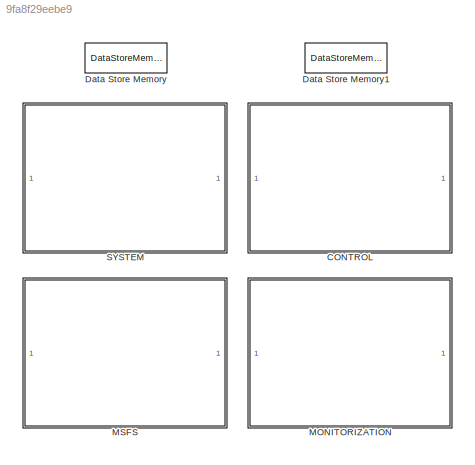
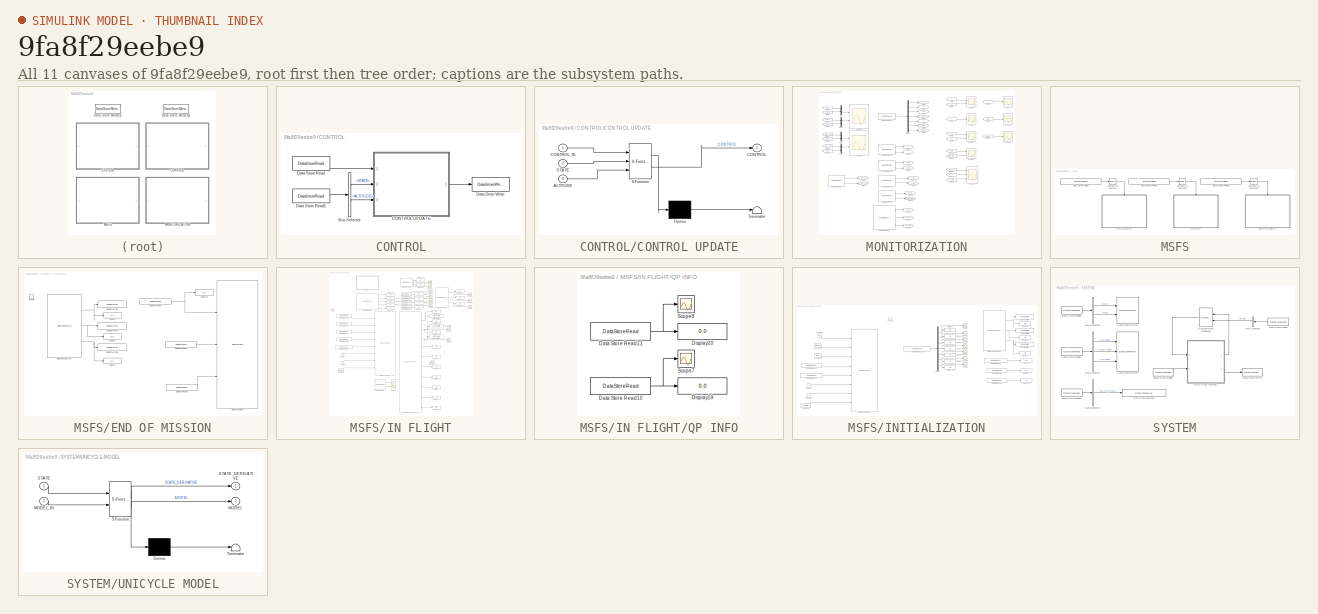
[diagram: thumbnail index - all 11 canvases of the model, root first then tree order]
MODEL slx_9fa8f29eebe9
KIND model
CONFIG AbsTol = auto
CONFIG EnableMultiTasking = off
CONFIG FixedStep = 0.03
CONFIG MaxStep = auto
CONFIG MinStep = auto
CONFIG RelTol = 1e-3
CONFIG SampleTimeConstraint = Unconstrained
CONFIG SolverName = FixedStepAuto
CONFIG StartTime = 0.0
CONFIG StopTime = 600
BLOCK [SubSystem] CONTROL
  Ports = []
  RequestExecContextInheritance = off
BLOCK [BusSelector] CONTROL/Bus Selector
  OutputSignals = STATE,INPUT.ALTITUDE
  Ports = [1, 2]
BLOCK [SubSystem] CONTROL/CONTROL UPDATE
  ErrorFcn = Stateflow.Translate.translate
  PermitHierarchicalResolution = ExplicitOnly
  Ports = [3, 1]
  RequestExecContextInheritance = off
  SFBlockType = MATLAB Function
  TreatAsAtomicUnit = on
BLOCK [Demux] CONTROL/CONTROL UPDATE/ Demux 
  Outputs = 1
  Ports = [1, 1]
BLOCK [S-Function] CONTROL/CONTROL UPDATE/ SFunction 
  EnableBusSupport = on
  FunctionName = sf_sfun
  PortCounts = [3 2]
  Ports = [3, 2]
  SFcnIsStateOwnerBlock = off
  SFunctionDeploymentMode = off
  Tag = Stateflow S-Function 1
BLOCK [Terminator] CONTROL/CONTROL UPDATE/ Terminator 
BLOCK [Inport] CONTROL/CONTROL UPDATE/ALTITUDE
  Port = 3
BLOCK [Outport] CONTROL/CONTROL UPDATE/CONTROL
BLOCK [Inport] CONTROL/CONTROL UPDATE/CONTROL_IN
BLOCK [Inport] CONTROL/CONTROL UPDATE/STATE
  Port = 2
BLOCK [DataStoreRead] CONTROL/Data Store Read
  DataStoreName = CONTROL
  IndexOptions = Index vector (dialog)
  Indices = 1
  OutputSizes = 1
  Ports = [0, 1]
  SampleTime = MODEL_INI.PARAM.SIM_SAMPLING_TIME
BLOCK [DataStoreRead] CONTROL/Data Store Read1
  DataStoreName = MODEL
  IndexOptions = Index vector (dialog)
  Indices = 1
  OutputSizes = 1
  Ports = [0, 1]
  SampleTime = MODEL_INI.PARAM.SIM_SAMPLING_TIME
BLOCK [DataStoreWrite] CONTROL/Data Store Write
  DataStoreName = CONTROL
  IndexOptions = Index vector (dialog)
  Indices = 1
  OutputSizes = 1
  Ports = [1]
BLOCK [DataStoreMemory] Data Store Memory
  DataStoreName = MODEL
  InitialValue = MODEL_INI
  OutDataTypeStr = Bus: MODEL_Bus
  ReadBeforeWriteMsg = warning
  ShowAdditionalParam = off
  WriteAfterReadMsg = warning
  WriteAfterWriteMsg = warning
BLOCK [DataStoreMemory] Data Store Memory1
  DataStoreName = CONTROL
  InitialValue = CONTROL_INI
  OutDataTypeStr = Bus: CONTROL_Bus
  ReadBeforeWriteMsg = warning
  ShowAdditionalParam = off
  WriteAfterReadMsg = warning
  WriteAfterWriteMsg = warning
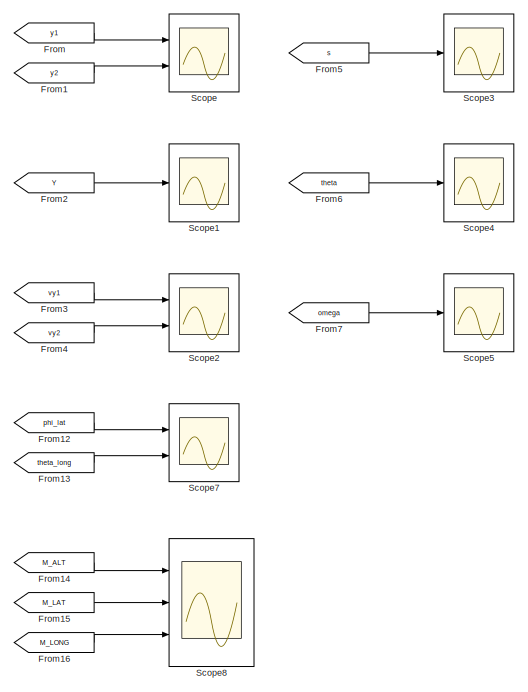
[diagram: MONITORIZATION - part 1/2, middle right region]
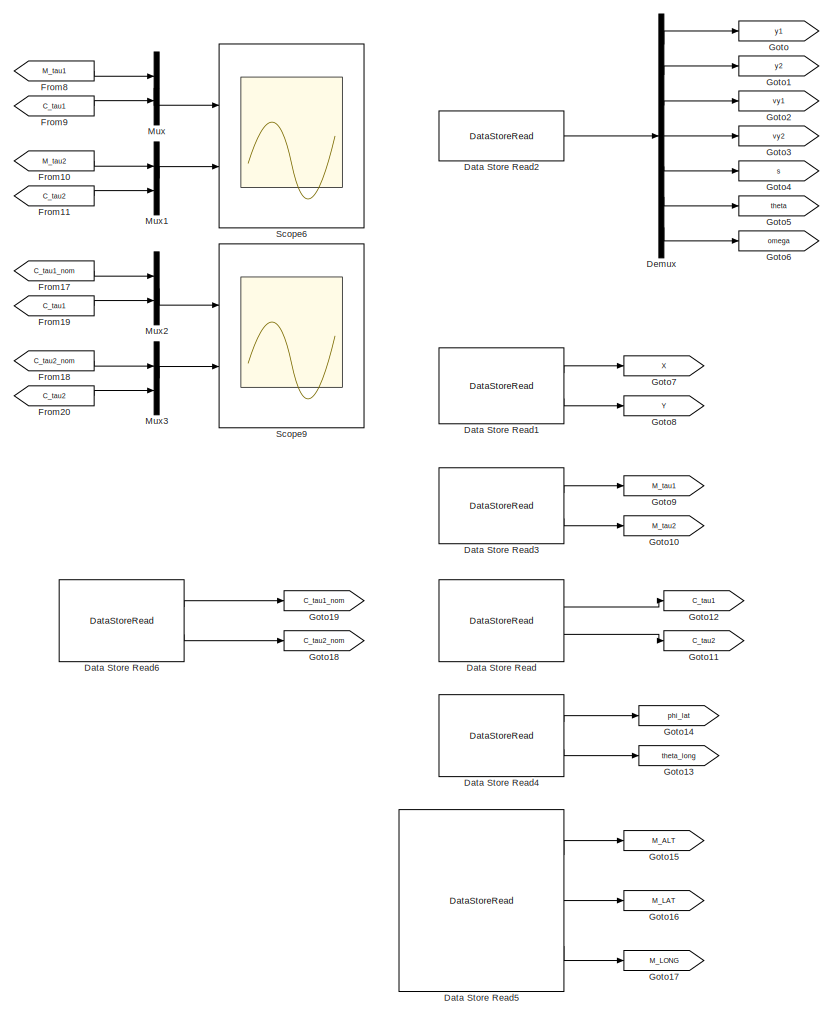
[diagram: MONITORIZATION - part 2/2, left side, full height]
BLOCK [SubSystem] MONITORIZATION
  Ports = []
  RequestExecContextInheritance = off
BLOCK [DataStoreRead] MONITORIZATION/Data Store Read
  DataStoreElements = CONTROL.OUTPUT.TAU1#CONTROL.OUTPUT.TAU2
  DataStoreName = CONTROL
  IndexOptions = Index vector (dialog)
  Indices = 1
  OutputSizes = 1
  Ports = [0, 2]
BLOCK [DataStoreRead] MONITORIZATION/Data Store Read1
  DataStoreElements = MODEL.OUTPUT.X#MODEL.OUTPUT.Y
  DataStoreName = MODEL
  IndexOptions = Index vector (dialog)
  Indices = 1
  OutputSizes = 1
  Ports = [0, 2]
  SampleTime = MODEL_INI.PARAM.SIM_SAMPLING_TIME
BLOCK [DataStoreRead] MONITORIZATION/Data Store Read2
  DataStoreElements = MODEL.STATE(:,:)
  DataStoreName = MODEL
  IndexOptions = Index vector (dialog)
  Indices = 1
  OutputSizes = 1
  Ports = [0, 1]
  SampleTime = MODEL_INI.PARAM.SIM_SAMPLING_TIME
BLOCK [DataStoreRead] MONITORIZATION/Data Store Read3
  DataStoreElements = MODEL.INPUT.TAU1#MODEL.INPUT.TAU2
  DataStoreName = MODEL
  IndexOptions = Index vector (dialog)
  Indices = 1
  OutputSizes = 1
  Ports = [0, 2]
  SampleTime = MODEL_INI.PARAM.SIM_SAMPLING_TIME
BLOCK [DataStoreRead] MONITORIZATION/Data Store Read4
  DataStoreElements = CONTROL.OUTPUT.LATITUDE#CONTROL.OUTPUT.LONGITUDE
  DataStoreName = CONTROL
  IndexOptions = Index vector (dialog)
  Indices = 1
  OutputSizes = 1
  Ports = [0, 2]
BLOCK [DataStoreRead] MONITORIZATION/Data Store Read5
  DataStoreElements = MODEL.INPUT.ALTITUDE#MODEL.INPUT.LATITUDE#MODEL.INPUT.LONGITUDE
  DataStoreName = MODEL
  IndexOptions = Index vector (dialog)
  Indices = 1
  OutputSizes = 1
  Ports = [0, 3]
  SampleTime = MODEL_INI.PARAM.SIM_SAMPLING_TIME
BLOCK [DataStoreRead] MONITORIZATION/Data Store Read6
  DataStoreElements = CONTROL.OUTPUT.TAU1_NOM#CONTROL.OUTPUT.TAU2_NOM
  DataStoreName = CONTROL
  IndexOptions = Index vector (dialog)
  Indices = 1
  OutputSizes = 1
  Ports = [0, 2]
BLOCK [Demux] MONITORIZATION/Demux
  Outputs = 7
  Ports = [1, 7]
BLOCK [From] MONITORIZATION/From
  GotoTag = y1
BLOCK [From] MONITORIZATION/From1
  GotoTag = y2
BLOCK [From] MONITORIZATION/From10
  GotoTag = M_tau2
BLOCK [From] MONITORIZATION/From11
  GotoTag = C_tau2
BLOCK [From] MONITORIZATION/From12
  GotoTag = phi_lat
BLOCK [From] MONITORIZATION/From13
  GotoTag = theta_long
BLOCK [From] MONITORIZATION/From14
  GotoTag = M_ALT
BLOCK [From] MONITORIZATION/From15
  GotoTag = M_LAT
BLOCK [From] MONITORIZATION/From16
  GotoTag = M_LONG
BLOCK [From] MONITORIZATION/From17
  GotoTag = C_tau1_nom
BLOCK [From] MONITORIZATION/From18
  GotoTag = C_tau2_nom
BLOCK [From] MONITORIZATION/From19
  GotoTag = C_tau1
BLOCK [From] MONITORIZATION/From2
  GotoTag = Y
BLOCK [From] MONITORIZATION/From20
  GotoTag = C_tau2
BLOCK [From] MONITORIZATION/From3
  GotoTag = vy1
BLOCK [From] MONITORIZATION/From4
  GotoTag = vy2
BLOCK [From] MONITORIZATION/From5
  GotoTag = s
BLOCK [From] MONITORIZATION/From6
  GotoTag = theta
BLOCK [From] MONITORIZATION/From7
  GotoTag = omega
BLOCK [From] MONITORIZATION/From8
  GotoTag = M_tau1
BLOCK [From] MONITORIZATION/From9
  GotoTag = C_tau1
BLOCK [Goto] MONITORIZATION/Goto
  GotoTag = y1
BLOCK [Goto] MONITORIZATION/Goto1
  GotoTag = y2
BLOCK [Goto] MONITORIZATION/Goto10
  GotoTag = M_tau2
BLOCK [Goto] MONITORIZATION/Goto11
  GotoTag = C_tau2
BLOCK [Goto] MONITORIZATION/Goto12
  GotoTag = C_tau1
BLOCK [Goto] MONITORIZATION/Goto13
  GotoTag = theta_long
BLOCK [Goto] MONITORIZATION/Goto14
  GotoTag = phi_lat
BLOCK [Goto] MONITORIZATION/Goto15
  GotoTag = M_ALT
BLOCK [Goto] MONITORIZATION/Goto16
  GotoTag = M_LAT
BLOCK [Goto] MONITORIZATION/Goto17
  GotoTag = M_LONG
BLOCK [Goto] MONITORIZATION/Goto18
  GotoTag = C_tau2_nom
BLOCK [Goto] MONITORIZATION/Goto19
  GotoTag = C_tau1_nom
BLOCK [Goto] MONITORIZATION/Goto2
  GotoTag = vy1
BLOCK [Goto] MONITORIZATION/Goto3
  GotoTag = vy2
BLOCK [Goto] MONITORIZATION/Goto4
  GotoTag = s
BLOCK [Goto] MONITORIZATION/Goto5
  GotoTag = theta
BLOCK [Goto] MONITORIZATION/Goto6
  GotoTag = omega
BLOCK [Goto] MONITORIZATION/Goto7
  GotoTag = X
BLOCK [Goto] MONITORIZATION/Goto8
  GotoTag = Y
BLOCK [Goto] MONITORIZATION/Goto9
  GotoTag = M_tau1
BLOCK [Mux] MONITORIZATION/Mux
  DisplayOption = bar
  Inputs = 2
  Ports = [2, 1]
BLOCK [Mux] MONITORIZATION/Mux1
  DisplayOption = bar
  Inputs = 2
  Ports = [2, 1]
BLOCK [Mux] MONITORIZATION/Mux2
  DisplayOption = bar
  Inputs = 2
  Ports = [2, 1]
BLOCK [Mux] MONITORIZATION/Mux3
  DisplayOption = bar
  Inputs = 2
  Ports = [2, 1]
BLOCK [Scope] MONITORIZATION/Scope
  Floating = off
  NumInputPorts = 2
  Ports = [2]
  ScopeSpecificationString = Simulink.scopes.TimeScopeBlockCfg('CurrentConfiguration', extmgr.ConfigurationSet(extmgr.Configuration('Core','General UI',true),extmgr.Configuration('Core','Source UI',true),extmgr.Configuration('Sources','WiredSimulink',true,'DataLoggingVariableName','DISP_COORDINATES','DataLogging',true,'DataLoggingSaveFormat','Structure'),extmgr.Configuration('Visuals','Time Domain',true,'SerializedDisplays',{...<+2108ch>
BLOCK [Scope] MONITORIZATION/Scope1
  Floating = off
  NumInputPorts = 1
  Ports = [1]
  ScopeSpecificationString = Simulink.scopes.TimeScopeBlockCfg('CurrentConfiguration', extmgr.ConfigurationSet(extmgr.Configuration('Core','General UI',true),extmgr.Configuration('Core','Source UI',true),extmgr.Configuration('Sources','WiredSimulink',true,'DataLoggingVariableName','DISP_OUTPUT','DataLogging',true,'DataLoggingSaveFormat','Structure'),extmgr.Configuration('Visuals','Time Domain',true,'SerializedDisplays',{struc...<+1606ch>
BLOCK [Scope] MONITORIZATION/Scope2
  Floating = off
  NumInputPorts = 2
  Ports = [2]
  ScopeSpecificationString = Simulink.scopes.TimeScopeBlockCfg('CurrentConfiguration', extmgr.ConfigurationSet(extmgr.Configuration('Core','General UI',true),extmgr.Configuration('Core','Source UI',true),extmgr.Configuration('Sources','WiredSimulink',true,'DataLoggingVariableName','ScopeData1','DataLoggingSaveFormat','Structure'),extmgr.Configuration('Visuals','Time Domain',true,'SerializedDisplays',{struct('MinYLimReal','-27...<+2062ch>
BLOCK [Scope] MONITORIZATION/Scope3
  Floating = off
  NumInputPorts = 1
  Ports = [1]
  ScopeSpecificationString = Simulink.scopes.TimeScopeBlockCfg('CurrentConfiguration', extmgr.ConfigurationSet(extmgr.Configuration('Core','General UI',true),extmgr.Configuration('Core','Source UI',true),extmgr.Configuration('Sources','WiredSimulink',true,'DataLoggingVariableName','ScopeData2','DataLoggingSaveFormat','Structure'),extmgr.Configuration('Visuals','Time Domain',true,'SerializedDisplays',{struct('MinYLimReal','-14...<+1510ch>
BLOCK [Scope] MONITORIZATION/Scope4
  Floating = off
  NumInputPorts = 1
  Ports = [1]
  ScopeSpecificationString = Simulink.scopes.TimeScopeBlockCfg('CurrentConfiguration', extmgr.ConfigurationSet(extmgr.Configuration('Core','General UI',true),extmgr.Configuration('Core','Source UI',true),extmgr.Configuration('Sources','WiredSimulink',true,'DataLoggingVariableName','ScopeData3','DataLoggingSaveFormat','Structure'),extmgr.Configuration('Visuals','Time Domain',true,'SerializedDisplays',{struct('MinYLimReal','-0....<+1525ch>
BLOCK [Scope] MONITORIZATION/Scope5
  Floating = off
  NumInputPorts = 1
  Ports = [1]
  ScopeSpecificationString = Simulink.scopes.TimeScopeBlockCfg('CurrentConfiguration', extmgr.ConfigurationSet(extmgr.Configuration('Core','General UI',true),extmgr.Configuration('Core','Source UI',true),extmgr.Configuration('Sources','WiredSimulink',true,'DataLoggingVariableName','ScopeData4','DataLoggingSaveFormat','Structure'),extmgr.Configuration('Visuals','Time Domain',true,'SerializedDisplays',{struct('MinYLimReal','-8....<+1506ch>
BLOCK [Scope] MONITORIZATION/Scope6
  Floating = off
  NumInputPorts = 2
  Ports = [2]
  ScopeSpecificationString = Simulink.scopes.TimeScopeBlockCfg('CurrentConfiguration', extmgr.ConfigurationSet(extmgr.Configuration('Core','General UI',true),extmgr.Configuration('Core','Source UI',true),extmgr.Configuration('Sources','WiredSimulink',true,'DataLoggingVariableName','INPUT','DataLogging',true,'DataLoggingSaveFormat','Structure'),extmgr.Configuration('Visuals','Time Domain',true,'SerializedDisplays',{struct('Min...<+2148ch>
BLOCK [Scope] MONITORIZATION/Scope7
  Floating = off
  NumInputPorts = 2
  Ports = [2]
  ScopeSpecificationString = Simulink.scopes.TimeScopeBlockCfg('CurrentConfiguration', extmgr.ConfigurationSet(extmgr.Configuration('Core','General UI',true),extmgr.Configuration('Core','Source UI',true),extmgr.Configuration('Sources','WiredSimulink',true,'DataLoggingVariableName','ScopeData1','DataLoggingSaveFormat','Structure'),extmgr.Configuration('Visuals','Time Domain',true,'SerializedDisplays',{struct('MinYLimReal','0.5...<+2083ch>
BLOCK [Scope] MONITORIZATION/Scope8
  Floating = off
  NumInputPorts = 3
  Ports = [3]
  ScopeSpecificationString = Simulink.scopes.TimeScopeBlockCfg('CurrentConfiguration', extmgr.ConfigurationSet(extmgr.Configuration('Core','General UI',true),extmgr.Configuration('Core','Source UI',true),extmgr.Configuration('Sources','WiredSimulink',true,'DataLoggingVariableName','ScopeData2','DataLoggingSaveFormat','Structure'),extmgr.Configuration('Visuals','Time Domain',true,'SerializedDisplays',{struct('MinYLimReal','-25...<+2799ch>
BLOCK [Scope] MONITORIZATION/Scope9
  Floating = off
  NumInputPorts = 2
  Ports = [2]
  ScopeSpecificationString = Simulink.scopes.TimeScopeBlockCfg('CurrentConfiguration', extmgr.ConfigurationSet(extmgr.Configuration('Core','General UI',true),extmgr.Configuration('Core','Source UI',true),extmgr.Configuration('Sources','WiredSimulink',true,'DataLoggingVariableName','ScopeData1','DataLogging',true,'DataLoggingSaveFormat','Structure'),extmgr.Configuration('Visuals','Time Domain',true,'SerializedDisplays',{struct...<+2074ch>
BLOCK [SubSystem] MSFS
  Ports = []
  RequestExecContextInheritance = off
BLOCK [Reference] MSFS/Compare To Constant  REF=simulink/Logic and Bit
Operations/Compare
To Constant
  Ports = [1, 1]
  SourceBlock = simulink/Logic and Bit\nOperations/Compare\nTo Constant
  SourceProductBaseCode = SL
  SourceType = Compare To Constant
BLOCK [Reference] MSFS/Compare To Constant1  REF=simulink/Logic and Bit
Operations/Compare
To Constant
  Ports = [1, 1]
  SourceBlock = simulink/Logic and Bit\nOperations/Compare\nTo Constant
  SourceProductBaseCode = SL
  SourceType = Compare To Constant
BLOCK [Reference] MSFS/Compare To Constant3  REF=simulink/Logic and Bit
Operations/Compare
To Constant
  Ports = [1, 1]
  SourceBlock = simulink/Logic and Bit\nOperations/Compare\nTo Constant
  SourceProductBaseCode = SL
  SourceType = Compare To Constant
BLOCK [DataStoreRead] MSFS/Data Store Read
  DataStoreElements = CONTROL.PARAM.FLIGHT_STATUS
  DataStoreName = CONTROL
  IndexOptions = Index vector (dialog)
  Indices = 1
  OutputSizes = 1
  Ports = [0, 1]
BLOCK [DataStoreRead] MSFS/Data Store Read1
  DataStoreElements = CONTROL.PARAM.FLIGHT_STATUS
  DataStoreName = CONTROL
  IndexOptions = Index vector (dialog)
  Indices = 1
  OutputSizes = 1
  Ports = [0, 1]
BLOCK [DataStoreRead] MSFS/Data Store Read3
  DataStoreElements = CONTROL.PARAM.FLIGHT_STATUS
  DataStoreName = CONTROL
  IndexOptions = Index vector (dialog)
  Indices = 1
  OutputSizes = 1
  Ports = [0, 1]
BLOCK [SubSystem] MSFS/END OF MISSION
  Ports = [0, 0, 1]
  RequestExecContextInheritance = off
BLOCK [DataStoreRead] MSFS/END OF MISSION/Data Store Read3
  DataStoreElements = MODEL.OUTPUT.LATITUDE
  DataStoreName = MODEL
  IndexOptions = Index vector (dialog)
  Indices = 1
  OutputSizes = 1
  Ports = [0, 1]
BLOCK [DataStoreRead] MSFS/END OF MISSION/Data Store Read6
  DataStoreElements = MODEL.OUTPUT.LONGITUDE
  DataStoreName = MODEL
  IndexOptions = Index vector (dialog)
  Indices = 1
  OutputSizes = 1
  Ports = [0, 1]
BLOCK [DataStoreRead] MSFS/END OF MISSION/Data Store Read7
  DataStoreElements = MODEL.OUTPUT.ALTITUDE
  DataStoreName = MODEL
  IndexOptions = Index vector (dialog)
  Indices = 1
  OutputSizes = 1
  Ports = [0, 1]
BLOCK [DataStoreWrite] MSFS/END OF MISSION/Data Store Write
  DataStoreElements = MODEL.INPUT.LATITUDE
  DataStoreName = MODEL
  IndexOptions = Index vector (dialog)
  Indices = 1
  OutputSizes = 1
  Ports = [1]
BLOCK [DataStoreWrite] MSFS/END OF MISSION/Data Store Write1
  DataStoreElements = MODEL.INPUT.LONGITUDE
  DataStoreName = MODEL
  IndexOptions = Index vector (dialog)
  Indices = 1
  OutputSizes = 1
  Ports = [1]
BLOCK [DataStoreWrite] MSFS/END OF MISSION/Data Store Write2
  DataStoreElements = MODEL.INPUT.ALTITUDE
  DataStoreName = MODEL
  IndexOptions = Index vector (dialog)
  Indices = 1
  OutputSizes = 1
  Ports = [1]
BLOCK [Display] MSFS/END OF MISSION/Display1
  Decimation = 1
  Ports = [1]
BLOCK [Display] MSFS/END OF MISSION/Display16
  Decimation = 1
  Ports = [1]
BLOCK [Display] MSFS/END OF MISSION/Display2
  Decimation = 1
  Ports = [1]
BLOCK [Display] MSFS/END OF MISSION/Display3
  Decimation = 1
  Ports = [1]
BLOCK [EnablePort] MSFS/END OF MISSION/Enable
  Ports = []
BLOCK [Reference] MSFS/END OF MISSION/SimConnect Sink2  REF=SimConnectToolbox/SimConnect Sink
  Ports = [3]
  SourceBlock = SimConnectToolbox/SimConnect Sink
  SourceProductName = SimConnect Toolbox
BLOCK [Reference] MSFS/END OF MISSION/SimConnect Source1  REF=SimConnectToolbox/SimConnect Source
  Ports = [0, 3]
  SourceBlock = SimConnectToolbox/SimConnect Source
  SourceProductName = SimConnect Toolbox
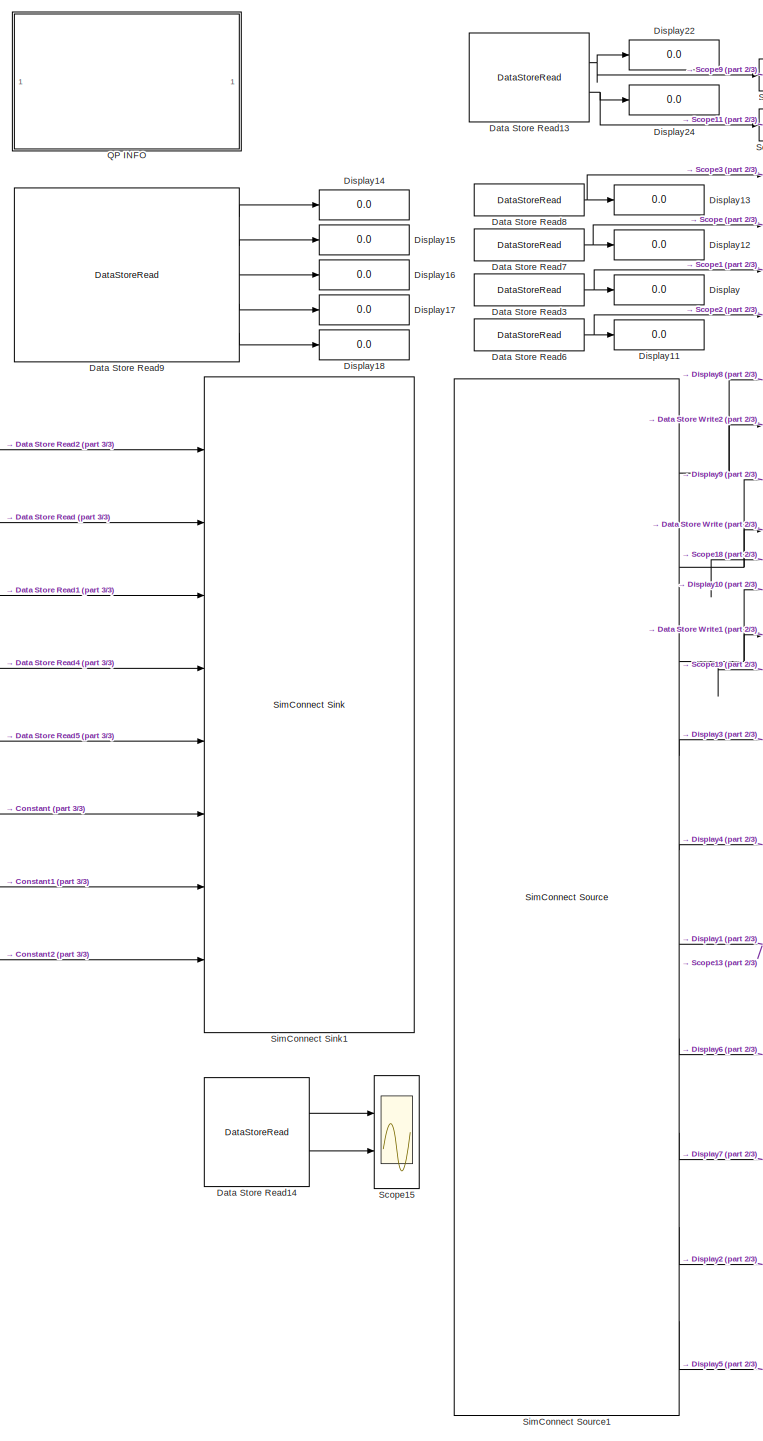
[diagram: MSFS/IN FLIGHT - part 1/3, center side, full height]
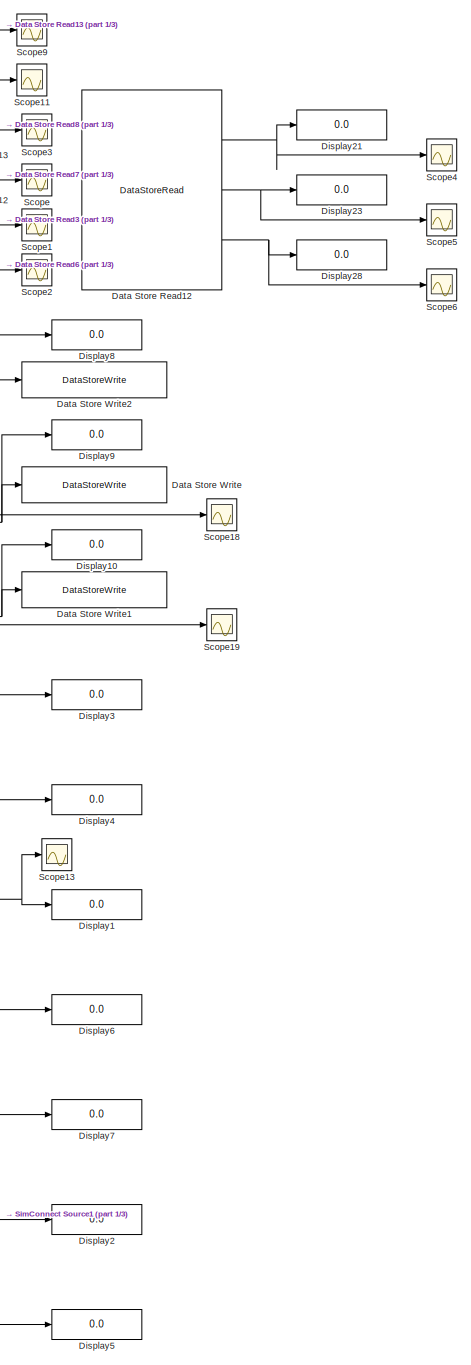
[diagram: MSFS/IN FLIGHT - part 2/3, right side, full height]
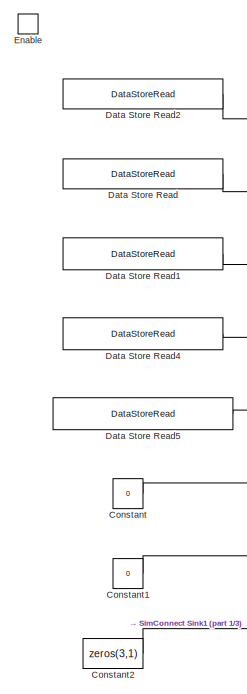
[diagram: MSFS/IN FLIGHT - part 3/3, middle left region]
BLOCK [SubSystem] MSFS/IN FLIGHT
  Ports = [0, 0, 1]
  RequestExecContextInheritance = off
BLOCK [Constant] MSFS/IN FLIGHT/Constant
  SampleTime = -1
  Value = 0
BLOCK [Constant] MSFS/IN FLIGHT/Constant1
  SampleTime = -1
  Value = 0
BLOCK [Constant] MSFS/IN FLIGHT/Constant2
  SampleTime = -1
  Value = zeros(3,1)
BLOCK [DataStoreRead] MSFS/IN FLIGHT/Data Store Read
  DataStoreElements = MODEL.OUTPUT.LATITUDE
  DataStoreName = MODEL
  IndexOptions = Index vector (dialog)
  Indices = 1
  OutputSizes = 1
  Ports = [0, 1]
BLOCK [DataStoreRead] MSFS/IN FLIGHT/Data Store Read1
  DataStoreElements = MODEL.OUTPUT.LONGITUDE
  DataStoreName = MODEL
  IndexOptions = Index vector (dialog)
  Indices = 1
  OutputSizes = 1
  Ports = [0, 1]
BLOCK [DataStoreRead] MSFS/IN FLIGHT/Data Store Read12
  DataStoreElements = CONTROL.PARAM.CLASSK#CONTROL.PARAM.T_REM#CONTROL.PARAM.MU2
  DataStoreName = CONTROL
  IndexOptions = Index vector (dialog)
  Indices = 1
  OutputSizes = 1
  Ports = [0, 3]
BLOCK [DataStoreRead] MSFS/IN FLIGHT/Data Store Read13
  DataStoreElements = CONTROL.PARAM.CBF_H#CONTROL.PARAM.CBF_PSI
  DataStoreName = CONTROL
  IndexOptions = Index vector (dialog)
  Indices = 1
  OutputSizes = 1
  Ports = [0, 2]
BLOCK [DataStoreRead] MSFS/IN FLIGHT/Data Store Read14
  DataStoreElements = CONTROL.OUTPUT.NED_VY1#CONTROL.OUTPUT.NED_VY2
  DataStoreName = CONTROL
  IndexOptions = Index vector (dialog)
  Indices = 1
  OutputSizes = 1
  Ports = [0, 2]
BLOCK [DataStoreRead] MSFS/IN FLIGHT/Data Store Read2
  DataStoreElements = MODEL.OUTPUT.ALTITUDE
  DataStoreName = MODEL
  IndexOptions = Index vector (dialog)
  Indices = 1
  OutputSizes = 1
  Ports = [0, 1]
BLOCK [DataStoreRead] MSFS/IN FLIGHT/Data Store Read3
  DataStoreElements = CONTROL.PARAM.PTS_ACTIVE_FLAG
  DataStoreName = CONTROL
  IndexOptions = Index vector (dialog)
  Indices = 1
  OutputSizes = 1
  Ports = [0, 1]
BLOCK [DataStoreRead] MSFS/IN FLIGHT/Data Store Read4
  DataStoreElements = MODEL.OUTPUT.PITCH
  DataStoreName = MODEL
  IndexOptions = Index vector (dialog)
  Indices = 1
  OutputSizes = 1
  Ports = [0, 1]
BLOCK [DataStoreRead] MSFS/IN FLIGHT/Data Store Read5
  DataStoreElements = CONTROL.OUTPUT.HEADING_NED
  DataStoreName = CONTROL
  IndexOptions = Index vector (dialog)
  Indices = 1
  OutputSizes = 1
  Ports = [0, 1]
BLOCK [DataStoreRead] MSFS/IN FLIGHT/Data Store Read6
  DataStoreElements = CONTROL.PARAM.WP_THRESHOLD
  DataStoreName = CONTROL
  IndexOptions = Index vector (dialog)
  Indices = 1
  OutputSizes = 1
  Ports = [0, 1]
BLOCK [DataStoreRead] MSFS/IN FLIGHT/Data Store Read7
  DataStoreElements = CONTROL.PARAM.CBF_ACTIVE_FLAG
  DataStoreName = CONTROL
  IndexOptions = Index vector (dialog)
  Indices = 1
  OutputSizes = 1
  Ports = [0, 1]
BLOCK [DataStoreRead] MSFS/IN FLIGHT/Data Store Read8
  DataStoreElements = CONTROL.TARGET.WP_INDEX
  DataStoreName = CONTROL
  IndexOptions = Index vector (dialog)
  Indices = 1
  OutputSizes = 1
  Ports = [0, 1]
BLOCK [DataStoreRead] MSFS/IN FLIGHT/Data Store Read9
  DataStoreElements = CONTROL.PARAM.PTS_TIME_SAFE#CONTROL.PARAM.TIMER#CONTROL.PARAM.WP_TIMER#CONTROL.PARAM.WP_TIMER_MEM#CONTROL.PARAM.SIM_TIME
  DataStoreName = CONTROL
  IndexOptions = Index vector (dialog)
  Indices = 1
  OutputSizes = 1
  Ports = [0, 5]
BLOCK [DataStoreWrite] MSFS/IN FLIGHT/Data Store Write
  DataStoreElements = MODEL.INPUT.LATITUDE
  DataStoreName = MODEL
  IndexOptions = Index vector (dialog)
  Indices = 1
  OutputSizes = 1
  Ports = [1]
BLOCK [DataStoreWrite] MSFS/IN FLIGHT/Data Store Write1
  DataStoreElements = MODEL.INPUT.LONGITUDE
  DataStoreName = MODEL
  IndexOptions = Index vector (dialog)
  Indices = 1
  OutputSizes = 1
  Ports = [1]
BLOCK [DataStoreWrite] MSFS/IN FLIGHT/Data Store Write2
  DataStoreElements = MODEL.INPUT.ALTITUDE
  DataStoreName = MODEL
  IndexOptions = Index vector (dialog)
  Indices = 1
  OutputSizes = 1
  Ports = [1]
BLOCK [Display] MSFS/IN FLIGHT/Display
  Decimation = 1
  Ports = [1]
BLOCK [Display] MSFS/IN FLIGHT/Display1
  Decimation = 1
  Ports = [1]
BLOCK [Display] MSFS/IN FLIGHT/Display10
  Decimation = 1
  Ports = [1]
BLOCK [Display] MSFS/IN FLIGHT/Display11
  Decimation = 1
  Ports = [1]
BLOCK [Display] MSFS/IN FLIGHT/Display12
  Decimation = 1
  Ports = [1]
BLOCK [Display] MSFS/IN FLIGHT/Display13
  Decimation = 1
  Ports = [1]
BLOCK [Display] MSFS/IN FLIGHT/Display14
  Decimation = 1
  Ports = [1]
BLOCK [Display] MSFS/IN FLIGHT/Display15
  Decimation = 1
  Ports = [1]
BLOCK [Display] MSFS/IN FLIGHT/Display16
  Decimation = 1
  Ports = [1]
BLOCK [Display] MSFS/IN FLIGHT/Display17
  Decimation = 1
  Ports = [1]
BLOCK [Display] MSFS/IN FLIGHT/Display18
  Decimation = 1
  Ports = [1]
BLOCK [Display] MSFS/IN FLIGHT/Display2
  Decimation = 1
  Ports = [1]
BLOCK [Display] MSFS/IN FLIGHT/Display21
  Decimation = 1
  Ports = [1]
BLOCK [Display] MSFS/IN FLIGHT/Display22
  Decimation = 1
  Ports = [1]
BLOCK [Display] MSFS/IN FLIGHT/Display23
  Decimation = 1
  Ports = [1]
BLOCK [Display] MSFS/IN FLIGHT/Display24
  Decimation = 1
  Ports = [1]
BLOCK [Display] MSFS/IN FLIGHT/Display28
  Decimation = 1
  Ports = [1]
BLOCK [Display] MSFS/IN FLIGHT/Display3
  Decimation = 1
  Ports = [1]
BLOCK [Display] MSFS/IN FLIGHT/Display4
  Decimation = 1
  Ports = [1]
BLOCK [Display] MSFS/IN FLIGHT/Display5
  Decimation = 1
  Ports = [1]
BLOCK [Display] MSFS/IN FLIGHT/Display6
  Decimation = 1
  Ports = [1]
BLOCK [Display] MSFS/IN FLIGHT/Display7
  Decimation = 1
  Ports = [1]
BLOCK [Display] MSFS/IN FLIGHT/Display8
  Decimation = 1
  Ports = [1]
BLOCK [Display] MSFS/IN FLIGHT/Display9
  Decimation = 1
  Ports = [1]
BLOCK [EnablePort] MSFS/IN FLIGHT/Enable
  Ports = []
BLOCK [SubSystem] MSFS/IN FLIGHT/QP INFO
  Ports = []
  RequestExecContextInheritance = off
BLOCK [DataStoreRead] MSFS/IN FLIGHT/QP INFO/Data Store Read10
  DataStoreElements = CONTROL.PARAM.FVAL
  DataStoreName = CONTROL
  IndexOptions = Index vector (dialog)
  Indices = 1
  OutputSizes = 1
  Ports = [0, 1]
BLOCK [DataStoreRead] MSFS/IN FLIGHT/QP INFO/Data Store Read11
  DataStoreElements = CONTROL.PARAM.EXITVAL
  DataStoreName = CONTROL
  IndexOptions = Index vector (dialog)
  Indices = 1
  OutputSizes = 1
  Ports = [0, 1]
BLOCK [Display] MSFS/IN FLIGHT/QP INFO/Display19
  Decimation = 1
  Ports = [1]
BLOCK [Display] MSFS/IN FLIGHT/QP INFO/Display20
  Decimation = 1
  Ports = [1]
BLOCK [Scope] MSFS/IN FLIGHT/QP INFO/Scope7
  Floating = off
  NumInputPorts = 1
  Ports = [1]
  ScopeSpecificationString = Simulink.scopes.TimeScopeBlockCfg('CurrentConfiguration', extmgr.ConfigurationSet(extmgr.Configuration('Core','General UI',true),extmgr.Configuration('Core','Source UI',true),extmgr.Configuration('Sources','WiredSimulink',true,'DataLoggingVariableName','ScopeData4'),extmgr.Configuration('Visuals','Time Domain',true,'SerializedDisplays',{struct('MinYLimReal','-3738106.00699','MaxYLimReal','417394.4...<+1493ch>
BLOCK [Scope] MSFS/IN FLIGHT/QP INFO/Scope8
  Floating = off
  NumInputPorts = 1
  Ports = [1]
  ScopeSpecificationString = Simulink.scopes.TimeScopeBlockCfg('CurrentConfiguration', extmgr.ConfigurationSet(extmgr.Configuration('Core','General UI',true),extmgr.Configuration('Core','Source UI',true),extmgr.Configuration('Sources','WiredSimulink',true,'DataLoggingVariableName','ScopeData5'),extmgr.Configuration('Visuals','Time Domain',true,'SerializedDisplays',{struct('MinYLimReal','-0.125','MaxYLimReal','1.125','YLabelRe...<+1437ch>
BLOCK [Scope] MSFS/IN FLIGHT/Scope
  Floating = off
  NumInputPorts = 1
  Ports = [1]
  ScopeSpecificationString = Simulink.scopes.TimeScopeBlockCfg('CurrentConfiguration', extmgr.ConfigurationSet(extmgr.Configuration('Core','General UI',true),extmgr.Configuration('Core','Source UI',true),extmgr.Configuration('Sources','WiredSimulink',true,'DataLoggingVariableName','ScopeData1'),extmgr.Configuration('Visuals','Time Domain',true,'SerializedDisplays',{struct('MinYLimReal','0.99858','MaxYLimReal','1.00097','YLabe...<+1417ch>
BLOCK [Scope] MSFS/IN FLIGHT/Scope1
  Floating = off
  NumInputPorts = 1
  Ports = [1]
  ScopeSpecificationString = Simulink.scopes.TimeScopeBlockCfg('CurrentConfiguration', extmgr.ConfigurationSet(extmgr.Configuration('Core','General UI',true),extmgr.Configuration('Core','Source UI',true),extmgr.Configuration('Sources','WiredSimulink',true,'DataLoggingVariableName','ScopeData2'),extmgr.Configuration('Visuals','Time Domain',true,'SerializedDisplays',{struct('MinYLimReal','0.999999988','MaxYLimReal','1.000000008...<+1488ch>
BLOCK [Scope] MSFS/IN FLIGHT/Scope11
  Floating = off
  NumInputPorts = 1
  Ports = [1]
  ScopeSpecificationString = Simulink.scopes.TimeScopeBlockCfg('CurrentConfiguration', extmgr.ConfigurationSet(extmgr.Configuration('Core','General UI',true),extmgr.Configuration('Core','Source UI',true),extmgr.Configuration('Sources','WiredSimulink',true,'DataLoggingVariableName','ScopeData3'),extmgr.Configuration('Visuals','Time Domain',true,'SerializedDisplays',{struct('MinYLimReal','-24548967.53136','MaxYLimReal','2207639...<+1480ch>
BLOCK [Scope] MSFS/IN FLIGHT/Scope13
  Floating = off
  NumInputPorts = 1
  Ports = [1]
  ScopeSpecificationString = Simulink.scopes.TimeScopeBlockCfg('CurrentConfiguration', extmgr.ConfigurationSet(extmgr.Configuration('Core','General UI',true),extmgr.Configuration('Core','Source UI',true),extmgr.Configuration('Sources','WiredSimulink',true,'DataLoggingVariableName','ScopeData1'),extmgr.Configuration('Visuals','Time Domain',true,'SerializedDisplays',{struct('MinYLimReal','-0.78536','MaxYLimReal','7.0682','YLabe...<+1448ch>
BLOCK [Scope] MSFS/IN FLIGHT/Scope15
  Floating = off
  NumInputPorts = 2
  Ports = [2]
  ScopeSpecificationString = Simulink.scopes.TimeScopeBlockCfg('CurrentConfiguration', extmgr.ConfigurationSet(extmgr.Configuration('Core','General UI',true),extmgr.Configuration('Core','Source UI',true),extmgr.Configuration('Sources','WiredSimulink',true,'DataLoggingVariableName','ScopeData1','DataLoggingSaveFormat','Structure'),extmgr.Configuration('Visuals','Time Domain',true,'SerializedDisplays',{struct('MinYLimReal','-65...<+2090ch>
BLOCK [Scope] MSFS/IN FLIGHT/Scope18
  Floating = off
  NumInputPorts = 1
  Ports = [1]
  ScopeSpecificationString = Simulink.scopes.TimeScopeBlockCfg('CurrentConfiguration', extmgr.ConfigurationSet(extmgr.Configuration('Core','General UI',true),extmgr.Configuration('Core','Source UI',true),extmgr.Configuration('Sources','WiredSimulink',true,'DataLoggingVariableName','LAT_DATA','DataLogging',true,'DataLoggingSaveFormat','Structure'),extmgr.Configuration('Visuals','Time Domain',true,'SerializedDisplays',{struct('...<+1456ch>
BLOCK [Scope] MSFS/IN FLIGHT/Scope19
  Floating = off
  NumInputPorts = 1
  Ports = [1]
  ScopeSpecificationString = Simulink.scopes.TimeScopeBlockCfg('CurrentConfiguration', extmgr.ConfigurationSet(extmgr.Configuration('Core','General UI',true),extmgr.Configuration('Core','Source UI',true),extmgr.Configuration('Sources','WiredSimulink',true,'DataLoggingVariableName','LONG_DATA','DataLogging',true,'DataLoggingSaveFormat','Structure'),extmgr.Configuration('Visuals','Time Domain',true,'SerializedDisplays',{struct(...<+1486ch>
BLOCK [Scope] MSFS/IN FLIGHT/Scope2
  Floating = off
  NumInputPorts = 1
  Ports = [1]
  ScopeSpecificationString = Simulink.scopes.TimeScopeBlockCfg('CurrentConfiguration', extmgr.ConfigurationSet(extmgr.Configuration('Core','General UI',true),extmgr.Configuration('Core','Source UI',true),extmgr.Configuration('Sources','WiredSimulink',true,'DataLoggingVariableName','ScopeData3'),extmgr.Configuration('Visuals','Time Domain',true,'SerializedDisplays',{struct('MinYLimReal','-0.125','MaxYLimReal','1.125','YLabelRe...<+1407ch>
BLOCK [Scope] MSFS/IN FLIGHT/Scope3
  Floating = off
  NumInputPorts = 1
  Ports = [1]
  ScopeSpecificationString = Simulink.scopes.TimeScopeBlockCfg('CurrentConfiguration', extmgr.ConfigurationSet(extmgr.Configuration('Core','General UI',true),extmgr.Configuration('Core','Source UI',true),extmgr.Configuration('Sources','WiredSimulink',true,'DataLoggingVariableName','ScopeData4'),extmgr.Configuration('Visuals','Time Domain',true,'SerializedDisplays',{struct('MinYLimReal','0.80806','MaxYLimReal','2.24932','YLabe...<+1392ch>
BLOCK [Scope] MSFS/IN FLIGHT/Scope4
  Floating = off
  NumInputPorts = 1
  Ports = [1]
  ScopeSpecificationString = Simulink.scopes.TimeScopeBlockCfg('CurrentConfiguration', extmgr.ConfigurationSet(extmgr.Configuration('Core','General UI',true),extmgr.Configuration('Core','Source UI',true),extmgr.Configuration('Sources','WiredSimulink',true,'DataLoggingVariableName','ScopeData1'),extmgr.Configuration('Visuals','Time Domain',true,'SerializedDisplays',{struct('MinYLimReal','-12.5','MaxYLimReal','112.5','YLabelRea...<+1438ch>
BLOCK [Scope] MSFS/IN FLIGHT/Scope5
  Floating = off
  NumInputPorts = 1
  Ports = [1]
  ScopeSpecificationString = Simulink.scopes.TimeScopeBlockCfg('CurrentConfiguration', extmgr.ConfigurationSet(extmgr.Configuration('Core','General UI',true),extmgr.Configuration('Core','Source UI',true),extmgr.Configuration('Sources','WiredSimulink',true,'DataLoggingVariableName','ScopeData2'),extmgr.Configuration('Visuals','Time Domain',true,'SerializedDisplays',{struct('MinYLimReal','-7.5','MaxYLimReal','67.5','YLabelReal'...<+1431ch>
BLOCK [Scope] MSFS/IN FLIGHT/Scope6
  Floating = off
  NumInputPorts = 1
  Ports = [1]
  ScopeSpecificationString = Simulink.scopes.TimeScopeBlockCfg('CurrentConfiguration', extmgr.ConfigurationSet(extmgr.Configuration('Core','General UI',true),extmgr.Configuration('Core','Source UI',true),extmgr.Configuration('Sources','WiredSimulink',true,'DataLoggingVariableName','ScopeData3'),extmgr.Configuration('Visuals','Time Domain',true,'SerializedDisplays',{struct('MinYLimReal','-125000.00001','MaxYLimReal','1125000.0...<+1492ch>
BLOCK [Scope] MSFS/IN FLIGHT/Scope9
  Floating = off
  NumInputPorts = 1
  Ports = [1]
  ScopeSpecificationString = Simulink.scopes.TimeScopeBlockCfg('CurrentConfiguration', extmgr.ConfigurationSet(extmgr.Configuration('Core','General UI',true),extmgr.Configuration('Core','Source UI',true),extmgr.Configuration('Sources','WiredSimulink',true,'DataLoggingVariableName','ScopeData1'),extmgr.Configuration('Visuals','Time Domain',true,'SerializedDisplays',{struct('MinYLimReal','-944116632.59564','MaxYLimReal','849704...<+1517ch>
BLOCK [Reference] MSFS/IN FLIGHT/SimConnect Sink1  REF=SimConnectToolbox/SimConnect Sink
  Ports = [8]
  SourceBlock = SimConnectToolbox/SimConnect Sink
  SourceProductName = SimConnect Toolbox
BLOCK [Reference] MSFS/IN FLIGHT/SimConnect Source1  REF=SimConnectToolbox/SimConnect Source
  Ports = [0, 10]
  SourceBlock = SimConnectToolbox/SimConnect Source
  SourceProductName = SimConnect Toolbox
BLOCK [SubSystem] MSFS/INITIALIZATION
  Ports = [0, 0, 1]
  RequestExecContextInheritance = off
BLOCK [Constant] MSFS/INITIALIZATION/Constant
  Commented = on
  SampleTime = -1
  Value = 0
BLOCK [Constant] MSFS/INITIALIZATION/Constant1
  Commented = on
  SampleTime = -1
  Value = 0
BLOCK [Constant] MSFS/INITIALIZATION/Constant2
  Commented = on
  SampleTime = -1
  Value = zeros(3,1)
BLOCK [Constant] MSFS/INITIALIZATION/Constant3
  Commented = on
  SampleTime = -1
  Value = 10e3
BLOCK [Constant] MSFS/INITIALIZATION/Constant4
  Commented = on
  SampleTime = -1
  Value = 5.89e-01
BLOCK [Constant] MSFS/INITIALIZATION/Constant5
  Commented = on
  SampleTime = -1
  Value = -1.47
BLOCK [DataStoreRead] MSFS/INITIALIZATION/Data Store Read
  DataStoreElements = MODEL.OUTPUT.LATITUDE
  DataStoreName = MODEL
  IndexOptions = Index vector (dialog)
  Indices = 1
  OutputSizes = 1
  Ports = [0, 1]
BLOCK [DataStoreRead] MSFS/INITIALIZATION/Data Store Read1
  DataStoreElements = MODEL.OUTPUT.LONGITUDE
  DataStoreName = MODEL
  IndexOptions = Index vector (dialog)
  Indices = 1
  OutputSizes = 1
  Ports = [0, 1]
BLOCK [DataStoreRead] MSFS/INITIALIZATION/Data Store Read2
  DataStoreElements = MODEL.STATE(:,:)
  DataStoreName = MODEL
  IndexOptions = Index vector (dialog)
  Indices = 1
  OutputSizes = 1
  Ports = [0, 1]
BLOCK [DataStoreRead] MSFS/INITIALIZATION/Data Store Read3
  DataStoreElements = CONTROL.OUTPUT.ALTITUDE
  DataStoreName = CONTROL
  IndexOptions = Index vector (dialog)
  Indices = 1
  OutputSizes = 1
  Ports = [0, 1]
BLOCK [DataStoreRead] MSFS/INITIALIZATION/Data Store Read4
  Commented = on
  DataStoreElements = MODEL.OUTPUT.PITCH
  DataStoreName = MODEL
  IndexOptions = Index vector (dialog)
  Indices = 1
  OutputSizes = 1
  Ports = [0, 1]
BLOCK [DataStoreRead] MSFS/INITIALIZATION/Data Store Read5
  Commented = on
  DataStoreElements = CONTROL.OUTPUT.HEADING_NED
  DataStoreName = CONTROL
  IndexOptions = Index vector (dialog)
  Indices = 1
  OutputSizes = 1
  Ports = [0, 1]
BLOCK [DataStoreWrite] MSFS/INITIALIZATION/Data Store Write
  DataStoreElements = MODEL.INPUT.LATITUDE
  DataStoreName = MODEL
  IndexOptions = Index vector (dialog)
  Indices = 1
  OutputSizes = 1
  Ports = [1]
BLOCK [DataStoreWrite] MSFS/INITIALIZATION/Data Store Write1
  DataStoreElements = MODEL.INPUT.LONGITUDE
  DataStoreName = MODEL
  IndexOptions = Index vector (dialog)
  Indices = 1
  OutputSizes = 1
  Ports = [1]
BLOCK [DataStoreWrite] MSFS/INITIALIZATION/Data Store Write2
  DataStoreElements = MODEL.INPUT.ALTITUDE
  DataStoreName = MODEL
  IndexOptions = Index vector (dialog)
  Indices = 1
  OutputSizes = 1
  Ports = [1]
BLOCK [Demux] MSFS/INITIALIZATION/Demux
  Outputs = 7
  Ports = [1, 7]
BLOCK [Display] MSFS/INITIALIZATION/Display
  Decimation = 1
  Ports = [1]
BLOCK [Display] MSFS/INITIALIZATION/Display1
  Decimation = 1
  Ports = [1]
BLOCK [Display] MSFS/INITIALIZATION/Display10
  Decimation = 1
  Ports = [1]
BLOCK [Display] MSFS/INITIALIZATION/Display11
  Decimation = 1
  Ports = [1]
BLOCK [Display] MSFS/INITIALIZATION/Display12
  Decimation = 1
  Ports = [1]
BLOCK [Display] MSFS/INITIALIZATION/Display2
  Decimation = 1
  Ports = [1]
BLOCK [Display] MSFS/INITIALIZATION/Display3
  Decimation = 1
  Ports = [1]
BLOCK [Display] MSFS/INITIALIZATION/Display4
  Decimation = 1
  Ports = [1]
BLOCK [Display] MSFS/INITIALIZATION/Display5
  Decimation = 1
  Ports = [1]
BLOCK [Display] MSFS/INITIALIZATION/Display6
  Decimation = 1
  Ports = [1]
BLOCK [Display] MSFS/INITIALIZATION/Display7
  Decimation = 1
  Ports = [1]
BLOCK [Display] MSFS/INITIALIZATION/Display8
  Decimation = 1
  Ports = [1]
BLOCK [Display] MSFS/INITIALIZATION/Display9
  Decimation = 1
  Ports = [1]
BLOCK [EnablePort] MSFS/INITIALIZATION/Enable
  Ports = []
BLOCK [Scope] MSFS/INITIALIZATION/Scope
  Floating = off
  NumInputPorts = 1
  Ports = [1]
  ScopeSpecificationString = Simulink.scopes.TimeScopeBlockCfg('CurrentConfiguration', extmgr.ConfigurationSet(extmgr.Configuration('Core','General UI',true),extmgr.Configuration('Core','Source UI',true),extmgr.Configuration('Sources','WiredSimulink',true,'DataLoggingVariableName','ScopeData1'),extmgr.Configuration('Visuals','Time Domain',true,'SerializedDisplays',{struct('MinYLimReal','1654490.09382','MaxYLimReal','2799776.0...<+1456ch>
BLOCK [Scope] MSFS/INITIALIZATION/Scope1
  Floating = off
  NumInputPorts = 1
  Ports = [1]
  ScopeSpecificationString = Simulink.scopes.TimeScopeBlockCfg('CurrentConfiguration', extmgr.ConfigurationSet(extmgr.Configuration('Core','General UI',true),extmgr.Configuration('Core','Source UI',true),extmgr.Configuration('Sources','WiredSimulink',true,'DataLoggingVariableName','ScopeData2'),extmgr.Configuration('Visuals','Time Domain',true),extmgr.Configuration('Tools','Plot Navigation',true),extmgr.Configuration('Tools',...<+40ch>
BLOCK [Scope] MSFS/INITIALIZATION/Scope2
  Floating = off
  NumInputPorts = 1
  Ports = [1]
  ScopeSpecificationString = Simulink.scopes.TimeScopeBlockCfg('CurrentConfiguration', extmgr.ConfigurationSet(extmgr.Configuration('Core','General UI',true),extmgr.Configuration('Core','Source UI',true),extmgr.Configuration('Sources','WiredSimulink',true,'DataLoggingVariableName','ScopeData3'),extmgr.Configuration('Visuals','Time Domain',true),extmgr.Configuration('Tools','Plot Navigation',true),extmgr.Configuration('Tools',...<+40ch>
BLOCK [Scope] MSFS/INITIALIZATION/Scope3
  Floating = off
  NumInputPorts = 1
  Ports = [1]
  ScopeSpecificationString = Simulink.scopes.TimeScopeBlockCfg('CurrentConfiguration', extmgr.ConfigurationSet(extmgr.Configuration('Core','General UI',true),extmgr.Configuration('Core','Source UI',true),extmgr.Configuration('Sources','WiredSimulink',true,'DataLoggingVariableName','ScopeData4'),extmgr.Configuration('Visuals','Time Domain',true),extmgr.Configuration('Tools','Plot Navigation',true),extmgr.Configuration('Tools',...<+40ch>
BLOCK [Scope] MSFS/INITIALIZATION/Scope4
  Floating = off
  NumInputPorts = 1
  Ports = [1]
  ScopeSpecificationString = Simulink.scopes.TimeScopeBlockCfg('CurrentConfiguration', extmgr.ConfigurationSet(extmgr.Configuration('Core','General UI',true),extmgr.Configuration('Core','Source UI',true),extmgr.Configuration('Sources','WiredSimulink',true,'DataLoggingVariableName','ScopeData5'),extmgr.Configuration('Visuals','Time Domain',true),extmgr.Configuration('Tools','Plot Navigation',true),extmgr.Configuration('Tools',...<+40ch>
BLOCK [Scope] MSFS/INITIALIZATION/Scope5
  Floating = off
  NumInputPorts = 1
  Ports = [1]
  ScopeSpecificationString = Simulink.scopes.TimeScopeBlockCfg('CurrentConfiguration', extmgr.ConfigurationSet(extmgr.Configuration('Core','General UI',true),extmgr.Configuration('Core','Source UI',true),extmgr.Configuration('Sources','WiredSimulink',true,'DataLoggingVariableName','ScopeData6'),extmgr.Configuration('Visuals','Time Domain',true),extmgr.Configuration('Tools','Plot Navigation',true),extmgr.Configuration('Tools',...<+40ch>
BLOCK [Scope] MSFS/INITIALIZATION/Scope6
  Floating = off
  NumInputPorts = 1
  Ports = [1]
  ScopeSpecificationString = Simulink.scopes.TimeScopeBlockCfg('CurrentConfiguration', extmgr.ConfigurationSet(extmgr.Configuration('Core','General UI',true),extmgr.Configuration('Core','Source UI',true),extmgr.Configuration('Sources','WiredSimulink',true,'DataLoggingVariableName','ScopeData7'),extmgr.Configuration('Visuals','Time Domain',true),extmgr.Configuration('Tools','Plot Navigation',true),extmgr.Configuration('Tools',...<+40ch>
BLOCK [Reference] MSFS/INITIALIZATION/SimConnect Sink1  REF=SimConnectToolbox/SimConnect Sink
  Commented = on
  Ports = [8]
  SourceBlock = SimConnectToolbox/SimConnect Sink
  SourceProductName = SimConnect Toolbox
BLOCK [Reference] MSFS/INITIALIZATION/SimConnect Source1  REF=SimConnectToolbox/SimConnect Source
  Ports = [0, 3]
  SourceBlock = SimConnectToolbox/SimConnect Source
  SourceProductName = SimConnect Toolbox
BLOCK [SubSystem] SYSTEM
  Ports = []
  RequestExecContextInheritance = off
BLOCK [BusSelector] SYSTEM/Bus Selector
  OutputSignals = STATE
  Ports = [1, 1]
BLOCK [BusSelector] SYSTEM/Bus Selector1
  OutputSignals = OUTPUT.LATITUDE,OUTPUT.LONGITUDE,PARAM.ALTITUDE
  Ports = [1, 3]
BLOCK [BusSelector] SYSTEM/Bus Selector2
  OutputSignals = OUTPUT.TAU1,OUTPUT.TAU2
  Ports = [1, 2]
BLOCK [BusSelector] SYSTEM/Bus Selector3
  OutputSignals = PARAM.FLIGHT_STATUS
  Ports = [1, 1]
BLOCK [DataStoreRead] SYSTEM/Data Store Read
  DataStoreName = MODEL
  IndexOptions = Index vector (dialog)
  Indices = 1
  OutputSizes = 1
  Ports = [0, 1]
  SampleTime = MODEL_INI.PARAM.SIM_SAMPLING_TIME
BLOCK [DataStoreRead] SYSTEM/Data Store Read1
  DataStoreName = CONTROL
  IndexOptions = Index vector (dialog)
  Indices = 1
  OutputSizes = 1
  Ports = [0, 1]
BLOCK [DataStoreRead] SYSTEM/Data Store Read2
  DataStoreName = MODEL
  IndexOptions = Index vector (dialog)
  Indices = 1
  OutputSizes = 1
  Ports = [0, 1]
  SampleTime = MODEL_INI.PARAM.SIM_SAMPLING_TIME
BLOCK [DataStoreRead] SYSTEM/Data Store Read3
  DataStoreName = CONTROL
  IndexOptions = Index vector (dialog)
  Indices = 1
  OutputSizes = 1
  Ports = [0, 1]
BLOCK [DataStoreRead] SYSTEM/Data Store Read5
  DataStoreName = CONTROL
  IndexOptions = Index vector (dialog)
  Indices = 1
  OutputSizes = 1
  Ports = [0, 1]
BLOCK [DataStoreWrite] SYSTEM/Data Store Write
  DataStoreName = MODEL
  IndexOptions = Index vector (dialog)
  Indices = 1
  OutputSizes = 1
  Ports = [1]
BLOCK [DataStoreWrite] SYSTEM/Data Store Write1
  DataStoreElements = MODEL.OUTPUT.LATITUDE#MODEL.OUTPUT.LONGITUDE#MODEL.OUTPUT.ALTITUDE
  DataStoreName = MODEL
  IndexOptions = Index vector (dialog)
  Indices = 1
  OutputSizes = 1
  Ports = [3]
BLOCK [DataStoreWrite] SYSTEM/Data Store Write2
  DataStoreElements = MODEL.INPUT.TAU1#MODEL.INPUT.TAU2
  DataStoreName = MODEL
  IndexOptions = Index vector (dialog)
  Indices = 1
  OutputSizes = 1
  Ports = [2]
BLOCK [DataStoreWrite] SYSTEM/Data Store Write3
  DataStoreElements = MODEL.PARAM.FLIGHT_STATUS
  DataStoreName = MODEL
  IndexOptions = Index vector (dialog)
  Indices = 1
  OutputSizes = 1
  Ports = [1]
BLOCK [DiscreteIntegrator] SYSTEM/Discrete-Time Integrator
  ICPrevOutput = DiscIntNeverNeededParam
  ICPrevScaledInput = DiscIntNeverNeededParam
  InitialConditionSetting = Auto
  InitialConditionSource = external
  Ports = [2, 1]
  SampleTime = -1
BLOCK [SubSystem] SYSTEM/UNICYCLE MODEL
  ErrorFcn = Stateflow.Translate.translate
  PermitHierarchicalResolution = ExplicitOnly
  Ports = [2, 2]
  RequestExecContextInheritance = off
  SFBlockType = MATLAB Function
  TreatAsAtomicUnit = on
BLOCK [Demux] SYSTEM/UNICYCLE MODEL/ Demux 
  Outputs = 1
  Ports = [1, 1]
BLOCK [S-Function] SYSTEM/UNICYCLE MODEL/ SFunction 
  EnableBusSupport = on
  FunctionName = sf_sfun
  PortCounts = [2 3]
  Ports = [2, 3]
  SFcnIsStateOwnerBlock = off
  SFunctionDeploymentMode = off
  Tag = Stateflow S-Function 2
BLOCK [Terminator] SYSTEM/UNICYCLE MODEL/ Terminator 
BLOCK [Outport] SYSTEM/UNICYCLE MODEL/MODEL
  Port = 2
BLOCK [Inport] SYSTEM/UNICYCLE MODEL/MODEL_IN
  Port = 2
BLOCK [Inport] SYSTEM/UNICYCLE MODEL/STATE
BLOCK [Outport] SYSTEM/UNICYCLE MODEL/STATE_DERIVATIVE
LINE CONTROL/Bus Selector:1 -> CONTROL/CONTROL UPDATE:2
LINE CONTROL/Bus Selector:2 -> CONTROL/CONTROL UPDATE:3
LINE CONTROL/CONTROL UPDATE:1 -> CONTROL/Data Store Write:1
LINE CONTROL/Data Store Read1:1 -> CONTROL/Bus Selector:1
LINE CONTROL/Data Store Read:1 -> CONTROL/CONTROL UPDATE:1
LINE MONITORIZATION/Data Store Read1:1 -> MONITORIZATION/Goto7:1
LINE MONITORIZATION/Data Store Read1:2 -> MONITORIZATION/Goto8:1
LINE MONITORIZATION/Data Store Read2:1 -> MONITORIZATION/Demux:1
LINE MONITORIZATION/Data Store Read3:1 -> MONITORIZATION/Goto9:1
LINE MONITORIZATION/Data Store Read3:2 -> MONITORIZATION/Goto10:1
LINE MONITORIZATION/Data Store Read4:1 -> MONITORIZATION/Goto14:1
LINE MONITORIZATION/Data Store Read4:2 -> MONITORIZATION/Goto13:1
LINE MONITORIZATION/Data Store Read5:1 -> MONITORIZATION/Goto15:1
LINE MONITORIZATION/Data Store Read5:2 -> MONITORIZATION/Goto16:1
LINE MONITORIZATION/Data Store Read5:3 -> MONITORIZATION/Goto17:1
LINE MONITORIZATION/Data Store Read6:1 -> MONITORIZATION/Goto19:1
LINE MONITORIZATION/Data Store Read6:2 -> MONITORIZATION/Goto18:1
LINE MONITORIZATION/Data Store Read:1 -> MONITORIZATION/Goto12:1
LINE MONITORIZATION/Data Store Read:2 -> MONITORIZATION/Goto11:1
LINE MONITORIZATION/Demux:1 -> MONITORIZATION/Goto:1
LINE MONITORIZATION/Demux:2 -> MONITORIZATION/Goto1:1
LINE MONITORIZATION/Demux:3 -> MONITORIZATION/Goto2:1
LINE MONITORIZATION/Demux:4 -> MONITORIZATION/Goto3:1
LINE MONITORIZATION/Demux:5 -> MONITORIZATION/Goto4:1
LINE MONITORIZATION/Demux:6 -> MONITORIZATION/Goto5:1
LINE MONITORIZATION/Demux:7 -> MONITORIZATION/Goto6:1
LINE MONITORIZATION/From10:1 -> MONITORIZATION/Mux1:1
LINE MONITORIZATION/From11:1 -> MONITORIZATION/Mux1:2
LINE MONITORIZATION/From12:1 -> MONITORIZATION/Scope7:1
LINE MONITORIZATION/From13:1 -> MONITORIZATION/Scope7:2
LINE MONITORIZATION/From14:1 -> MONITORIZATION/Scope8:1
LINE MONITORIZATION/From15:1 -> MONITORIZATION/Scope8:2
LINE MONITORIZATION/From16:1 -> MONITORIZATION/Scope8:3
LINE MONITORIZATION/From17:1 -> MONITORIZATION/Mux2:1
LINE MONITORIZATION/From18:1 -> MONITORIZATION/Mux3:1
LINE MONITORIZATION/From19:1 -> MONITORIZATION/Mux2:2
LINE MONITORIZATION/From1:1 -> MONITORIZATION/Scope:2
LINE MONITORIZATION/From20:1 -> MONITORIZATION/Mux3:2
LINE MONITORIZATION/From2:1 -> MONITORIZATION/Scope1:1
LINE MONITORIZATION/From3:1 -> MONITORIZATION/Scope2:1
LINE MONITORIZATION/From4:1 -> MONITORIZATION/Scope2:2
LINE MONITORIZATION/From5:1 -> MONITORIZATION/Scope3:1
LINE MONITORIZATION/From6:1 -> MONITORIZATION/Scope4:1
LINE MONITORIZATION/From7:1 -> MONITORIZATION/Scope5:1
LINE MONITORIZATION/From8:1 -> MONITORIZATION/Mux:1
LINE MONITORIZATION/From9:1 -> MONITORIZATION/Mux:2
LINE MONITORIZATION/From:1 -> MONITORIZATION/Scope:1
LINE MONITORIZATION/Mux1:1 -> MONITORIZATION/Scope6:2
LINE MONITORIZATION/Mux2:1 -> MONITORIZATION/Scope9:1
LINE MONITORIZATION/Mux3:1 -> MONITORIZATION/Scope9:2
LINE MONITORIZATION/Mux:1 -> MONITORIZATION/Scope6:1
LINE MSFS/Compare To Constant1:1 -> MSFS/IN FLIGHT:enable
LINE MSFS/Compare To Constant3:1 -> MSFS/END OF MISSION:enable
LINE MSFS/Compare To Constant:1 -> MSFS/INITIALIZATION:enable
LINE MSFS/Data Store Read1:1 -> MSFS/Compare To Constant1:1
LINE MSFS/Data Store Read3:1 -> MSFS/Compare To Constant3:1
LINE MSFS/Data Store Read:1 -> MSFS/Compare To Constant:1
LINE MSFS/END OF MISSION/Data Store Read3:1 -> MSFS/END OF MISSION/SimConnect Sink2:2
LINE MSFS/END OF MISSION/Data Store Read6:1 -> MSFS/END OF MISSION/SimConnect Sink2:3
NET MSFS/END OF MISSION/Data Store Read7:1 -> MSFS/END OF MISSION/Display16:1, MSFS/END OF MISSION/SimConnect Sink2:1
NET MSFS/END OF MISSION/SimConnect Source1:1 -> MSFS/END OF MISSION/Data Store Write2:1, MSFS/END OF MISSION/Display3:1
NET MSFS/END OF MISSION/SimConnect Source1:2 -> MSFS/END OF MISSION/Data Store Write:1, MSFS/END OF MISSION/Display2:1
NET MSFS/END OF MISSION/SimConnect Source1:3 -> MSFS/END OF MISSION/Data Store Write1:1, MSFS/END OF MISSION/Display1:1
LINE MSFS/IN FLIGHT/Constant1:1 -> MSFS/IN FLIGHT/SimConnect Sink1:7
LINE MSFS/IN FLIGHT/Constant2:1 -> MSFS/IN FLIGHT/SimConnect Sink1:8
LINE MSFS/IN FLIGHT/Constant:1 -> MSFS/IN FLIGHT/SimConnect Sink1:6
NET MSFS/IN FLIGHT/Data Store Read12:1 -> MSFS/IN FLIGHT/Display21:1, MSFS/IN FLIGHT/Scope4:1
NET MSFS/IN FLIGHT/Data Store Read12:2 -> MSFS/IN FLIGHT/Display23:1, MSFS/IN FLIGHT/Scope5:1
NET MSFS/IN FLIGHT/Data Store Read12:3 -> MSFS/IN FLIGHT/Display28:1, MSFS/IN FLIGHT/Scope6:1
NET MSFS/IN FLIGHT/Data Store Read13:1 -> MSFS/IN FLIGHT/Display22:1, MSFS/IN FLIGHT/Scope9:1
NET MSFS/IN FLIGHT/Data Store Read13:2 -> MSFS/IN FLIGHT/Display24:1, MSFS/IN FLIGHT/Scope11:1
LINE MSFS/IN FLIGHT/Data Store Read14:1 -> MSFS/IN FLIGHT/Scope15:1
LINE MSFS/IN FLIGHT/Data Store Read14:2 -> MSFS/IN FLIGHT/Scope15:2
LINE MSFS/IN FLIGHT/Data Store Read1:1 -> MSFS/IN FLIGHT/SimConnect Sink1:3
LINE MSFS/IN FLIGHT/Data Store Read2:1 -> MSFS/IN FLIGHT/SimConnect Sink1:1
NET MSFS/IN FLIGHT/Data Store Read3:1 -> MSFS/IN FLIGHT/Display:1, MSFS/IN FLIGHT/Scope1:1
LINE MSFS/IN FLIGHT/Data Store Read4:1 -> MSFS/IN FLIGHT/SimConnect Sink1:4
LINE MSFS/IN FLIGHT/Data Store Read5:1 -> MSFS/IN FLIGHT/SimConnect Sink1:5
NET MSFS/IN FLIGHT/Data Store Read6:1 -> MSFS/IN FLIGHT/Display11:1, MSFS/IN FLIGHT/Scope2:1
NET MSFS/IN FLIGHT/Data Store Read7:1 -> MSFS/IN FLIGHT/Display12:1, MSFS/IN FLIGHT/Scope:1
NET MSFS/IN FLIGHT/Data Store Read8:1 -> MSFS/IN FLIGHT/Display13:1, MSFS/IN FLIGHT/Scope3:1
LINE MSFS/IN FLIGHT/Data Store Read9:1 -> MSFS/IN FLIGHT/Display14:1
LINE MSFS/IN FLIGHT/Data Store Read9:2 -> MSFS/IN FLIGHT/Display15:1
LINE MSFS/IN FLIGHT/Data Store Read9:3 -> MSFS/IN FLIGHT/Display16:1
LINE MSFS/IN FLIGHT/Data Store Read9:4 -> MSFS/IN FLIGHT/Display17:1
LINE MSFS/IN FLIGHT/Data Store Read9:5 -> MSFS/IN FLIGHT/Display18:1
LINE MSFS/IN FLIGHT/Data Store Read:1 -> MSFS/IN FLIGHT/SimConnect Sink1:2
NET MSFS/IN FLIGHT/QP INFO/Data Store Read10:1 -> MSFS/IN FLIGHT/QP INFO/Display19:1, MSFS/IN FLIGHT/QP INFO/Scope7:1
NET MSFS/IN FLIGHT/QP INFO/Data Store Read11:1 -> MSFS/IN FLIGHT/QP INFO/Display20:1, MSFS/IN FLIGHT/QP INFO/Scope8:1
NET MSFS/IN FLIGHT/SimConnect Source1:1 -> MSFS/IN FLIGHT/Data Store Write2:1, MSFS/IN FLIGHT/Display8:1
LINE MSFS/IN FLIGHT/SimConnect Source1:10 -> MSFS/IN FLIGHT/Display5:1
NET MSFS/IN FLIGHT/SimConnect Source1:2 -> MSFS/IN FLIGHT/Data Store Write:1, MSFS/IN FLIGHT/Display9:1, MSFS/IN FLIGHT/Scope18:1
NET MSFS/IN FLIGHT/SimConnect Source1:3 -> MSFS/IN FLIGHT/Data Store Write1:1, MSFS/IN FLIGHT/Display10:1, MSFS/IN FLIGHT/Scope19:1
LINE MSFS/IN FLIGHT/SimConnect Source1:4 -> MSFS/IN FLIGHT/Display3:1
LINE MSFS/IN FLIGHT/SimConnect Source1:5 -> MSFS/IN FLIGHT/Display4:1
NET MSFS/IN FLIGHT/SimConnect Source1:6 -> MSFS/IN FLIGHT/Display1:1, MSFS/IN FLIGHT/Scope13:1
LINE MSFS/IN FLIGHT/SimConnect Source1:7 -> MSFS/IN FLIGHT/Display6:1
LINE MSFS/IN FLIGHT/SimConnect Source1:8 -> MSFS/IN FLIGHT/Display7:1
LINE MSFS/IN FLIGHT/SimConnect Source1:9 -> MSFS/IN FLIGHT/Display2:1
LINE MSFS/INITIALIZATION/Constant1:1 -> MSFS/INITIALIZATION/SimConnect Sink1:7
LINE MSFS/INITIALIZATION/Constant2:1 -> MSFS/INITIALIZATION/SimConnect Sink1:8
LINE MSFS/INITIALIZATION/Constant3:1 -> MSFS/INITIALIZATION/SimConnect Sink1:1
LINE MSFS/INITIALIZATION/Constant4:1 -> MSFS/INITIALIZATION/SimConnect Sink1:2
LINE MSFS/INITIALIZATION/Constant5:1 -> MSFS/INITIALIZATION/SimConnect Sink1:3
LINE MSFS/INITIALIZATION/Constant:1 -> MSFS/INITIALIZATION/SimConnect Sink1:6
LINE MSFS/INITIALIZATION/Data Store Read1:1 -> MSFS/INITIALIZATION/Display11:1
LINE MSFS/INITIALIZATION/Data Store Read2:1 -> MSFS/INITIALIZATION/Demux:1
LINE MSFS/INITIALIZATION/Data Store Read3:1 -> MSFS/INITIALIZATION/Display:1
LINE MSFS/INITIALIZATION/Data Store Read4:1 -> MSFS/INITIALIZATION/SimConnect Sink1:4
LINE MSFS/INITIALIZATION/Data Store Read5:1 -> MSFS/INITIALIZATION/SimConnect Sink1:5
LINE MSFS/INITIALIZATION/Data Store Read:1 -> MSFS/INITIALIZATION/Display10:1
NET MSFS/INITIALIZATION/Demux:1 -> MSFS/INITIALIZATION/Display4:1, MSFS/INITIALIZATION/Scope:1
NET MSFS/INITIALIZATION/Demux:2 -> MSFS/INITIALIZATION/Display5:1, MSFS/INITIALIZATION/Scope1:1
NET MSFS/INITIALIZATION/Demux:3 -> MSFS/INITIALIZATION/Display6:1, MSFS/INITIALIZATION/Scope3:1
NET MSFS/INITIALIZATION/Demux:4 -> MSFS/INITIALIZATION/Display7:1, MSFS/INITIALIZATION/Scope2:1
NET MSFS/INITIALIZATION/Demux:5 -> MSFS/INITIALIZATION/Display8:1, MSFS/INITIALIZATION/Scope4:1
NET MSFS/INITIALIZATION/Demux:6 -> MSFS/INITIALIZATION/Display9:1, MSFS/INITIALIZATION/Scope5:1
NET MSFS/INITIALIZATION/Demux:7 -> MSFS/INITIALIZATION/Display12:1, MSFS/INITIALIZATION/Scope6:1
NET MSFS/INITIALIZATION/SimConnect Source1:1 -> MSFS/INITIALIZATION/Data Store Write2:1, MSFS/INITIALIZATION/Display3:1
NET MSFS/INITIALIZATION/SimConnect Source1:2 -> MSFS/INITIALIZATION/Data Store Write:1, MSFS/INITIALIZATION/Display2:1
NET MSFS/INITIALIZATION/SimConnect Source1:3 -> MSFS/INITIALIZATION/Data Store Write1:1, MSFS/INITIALIZATION/Display1:1
LINE SYSTEM/Bus Selector1:1 -> SYSTEM/Data Store Write1:1
LINE SYSTEM/Bus Selector1:2 -> SYSTEM/Data Store Write1:2
LINE SYSTEM/Bus Selector1:3 -> SYSTEM/Data Store Write1:3
LINE SYSTEM/Bus Selector2:1 -> SYSTEM/Data Store Write2:1
LINE SYSTEM/Bus Selector2:2 -> SYSTEM/Data Store Write2:2
LINE SYSTEM/Bus Selector3:1 -> SYSTEM/Data Store Write3:1
LINE SYSTEM/Bus Selector:1 -> SYSTEM/Discrete-Time Integrator:2
LINE SYSTEM/Data Store Read1:1 -> SYSTEM/Bus Selector1:1
LINE SYSTEM/Data Store Read2:1 -> SYSTEM/UNICYCLE MODEL:2
LINE SYSTEM/Data Store Read3:1 -> SYSTEM/Bus Selector3:1
LINE SYSTEM/Data Store Read5:1 -> SYSTEM/Bus Selector2:1
LINE SYSTEM/Data Store Read:1 -> SYSTEM/Bus Selector:1
LINE SYSTEM/Discrete-Time Integrator:1 -> SYSTEM/UNICYCLE MODEL:1
LINE SYSTEM/UNICYCLE MODEL:1 -> SYSTEM/Discrete-Time Integrator:1
LINE SYSTEM/UNICYCLE MODEL:2 -> SYSTEM/Data Store Write:1
note: NET lines group one-source signal fan-out (src -> all destinations, sorted); 1:1 wires keep LINE
CHART CONTROL/CONTROL UPDATE states=1 transitions=1
  STATE_LABEL 'eML_blk_kernel()'
  STATE_LABEL 'SCRIPT:\nfunction CONTROL = CONTROL_UPDATE(CONTROL_IN, STATE, ALTITUDE)\n% COPY CONTROL BUS\nCONTROL = CONTROL_IN;\nCONTROL.PARAM.SIM_TIME = CONTROL.PARAM.SIM_TIME + CONTROL.PARAM.SAMPLING_TIME;\ncurr_sim_time = CONTROL.PARAM.SIM_TIME;\ndeltat = CONTROL.PARAM.SAMPLING_TIME;\nflight_status = CONTROL.PARAM.FLIGHT_STATUS;\ntimer = CONTROL.PARAM.TIMER;\n\n%-------------------------------------------------------...<+3608ch>'
CHART SYSTEM/UNICYCLE MODEL states=1 transitions=1
  STATE_LABEL 'eML_blk_kernel()'
  STATE_LABEL 'SCRIPT:\nfunction [STATE_DERIVATIVE,MODEL] = SO_UNICYCLE_MODEL(STATE, MODEL_IN)\n% COPY MODEL BUS\nMODEL = MODEL_IN;\n%--------------------------------------------------------------------------\n% SO UNICYCLE PARAMETERS\n%--------------------------------------------------------------------------\ndist_p = MODEL.PARAM.DISP_P;\nflight_status = MODEL.PARAM.FLIGHT_STATUS;\nswitch_flag = MODEL.PARAM.SWTCH_FLAG;...<+2463ch>'
CHART  states=0 transitions=0
CHART  states=0 transitions=0
